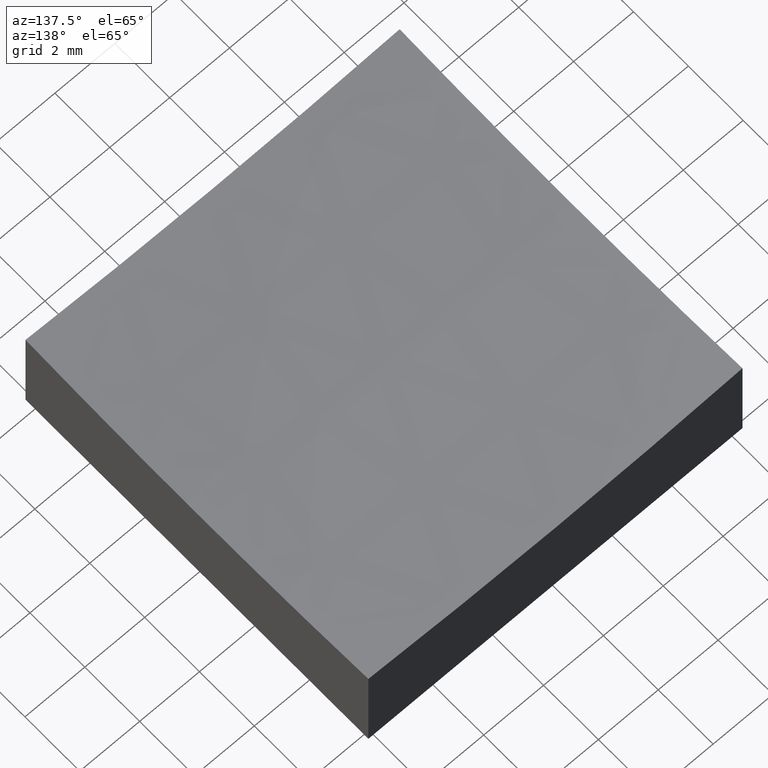
[diagram: clean part render]
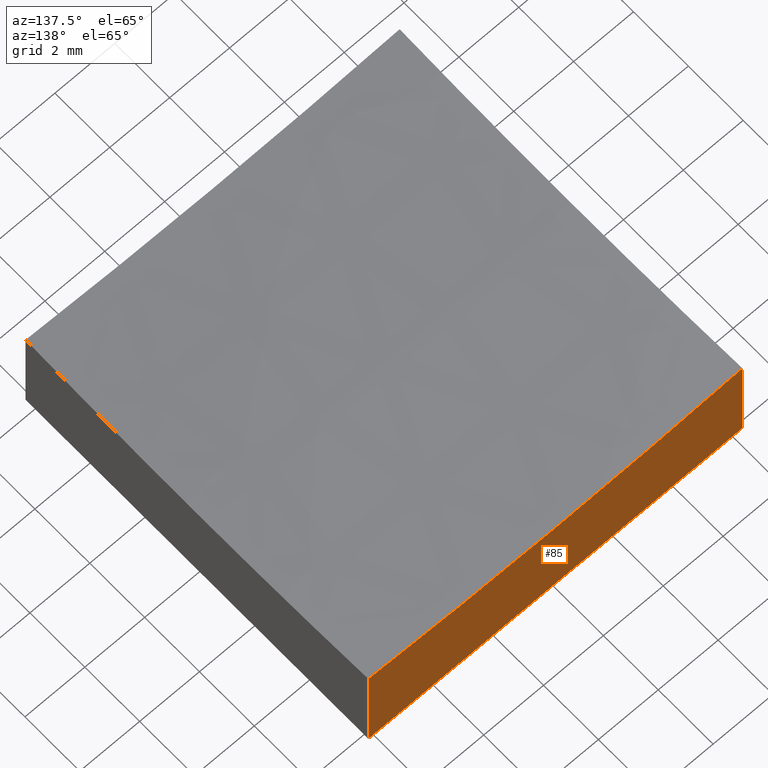
[diagram: same view with one face highlighted and labeled with its STEP entity id]
A machine part, auxiliary view. The second image highlights one B-rep face of the part: STEP entity #85.
In plain terms, the highlighted planar face has unit normal (0, 1, 0).
Its self-contained STEP definition (entity closure, byte-faithful):
#22 = LINE ( 'NONE', #120, #118 ) ;
#28 = ORIENTED_EDGE ( 'NONE', *, *, #129, .T. ) ;
#32 = DIRECTION ( 'NONE',  ( 1.000000000000000000, 0.0000000000000000000, 0.0000000000000000000 ) ) ;
#38 = AXIS2_PLACEMENT_3D ( 'NONE', #185, #133, #151 ) ;
#64 = EDGE_LOOP ( 'NONE', ( #197, #28, #221, #217 ) ) ;
#67 = VERTEX_POINT ( 'NONE', #188 ) ;
#72 = DIRECTION ( 'NONE',  ( 0.0000000000000000000, -0.0000000000000000000, 1.000000000000000000 ) ) ;
#85 = ADVANCED_FACE ( 'NONE', ( #145 ), #147, .T. ) ;
#90 = CARTESIAN_POINT ( 'NONE',  ( 6.250000000000000000, 6.250000000000000888, 10.00000000000000000 ) ) ;
#92 = LINE ( 'NONE', #90, #248 ) ;
#94 = EDGE_CURVE ( 'NONE', #67, #139, #99, .T. ) ;
#99 = LINE ( 'NONE', #182, #121 ) ;
#109 = VERTEX_POINT ( 'NONE', #117 ) ;
#117 = CARTESIAN_POINT ( 'NONE',  ( -6.250000000000000000, 6.250000000000000888, 3.489780531053754409 ) ) ;
#118 = VECTOR ( 'NONE', #122, 1000.000000000000000 ) ;
#120 = CARTESIAN_POINT ( 'NONE',  ( -6.250000000000000000, 6.250000000000000888, 10.00000000000000000 ) ) ;
#121 = VECTOR ( 'NONE', #32, 1000.000000000000000 ) ;
#122 = DIRECTION ( 'NONE',  ( -0.0000000000000000000, -0.0000000000000000000, -1.000000000000000000 ) ) ;
#125 = CARTESIAN_POINT ( 'NONE',  ( 6.250000000000000000, 6.250000000000000888, 3.489780531053754409 ) ) ;
#129 = EDGE_CURVE ( 'NONE', #234, #139, #92, .T. ) ;
#131 = DIRECTION ( 'NONE',  ( 0.0000000000000000000, 1.000000000000000000, 0.0000000000000000000 ) ) ;
#133 = DIRECTION ( 'NONE',  ( 0.0000000000000000000, 1.000000000000000000, 0.0000000000000000000 ) ) ;
#139 = VERTEX_POINT ( 'NONE', #250 ) ;
#145 = FACE_OUTER_BOUND ( 'NONE', #64, .T. ) ;
#147 = PLANE ( 'NONE',  #237 ) ;
#151 = DIRECTION ( 'NONE',  ( 0.0000000000000000000, 0.0000000000000000000, 1.000000000000000000 ) ) ;
#170 = EDGE_CURVE ( 'NONE', #234, #109, #187, .T. ) ;
#171 = CARTESIAN_POINT ( 'NONE',  ( -6.250000000000000000, 6.250000000000000888, 10.00000000000000000 ) ) ;
#182 = CARTESIAN_POINT ( 'NONE',  ( -6.250000000000000000, 6.250000000000000888, 0.0000000000000000000 ) ) ;
#185 = CARTESIAN_POINT ( 'NONE',  ( 1.016456843292302992E-14, 6.250000000000000888, 83.00000000000000000 ) ) ;
#187 = CIRCLE ( 'NONE', #38, 79.75548570474634857 ) ;
#188 = CARTESIAN_POINT ( 'NONE',  ( -6.250000000000000000, 6.250000000000000888, 0.0000000000000000000 ) ) ;
#197 = ORIENTED_EDGE ( 'NONE', *, *, #170, .F. ) ;
#217 = ORIENTED_EDGE ( 'NONE', *, *, #251, .F. ) ;
#221 = ORIENTED_EDGE ( 'NONE', *, *, #94, .F. ) ;
#234 = VERTEX_POINT ( 'NONE', #125 ) ;
#237 = AXIS2_PLACEMENT_3D ( 'NONE', #171, #131, #72 ) ;
#243 = DIRECTION ( 'NONE',  ( -0.0000000000000000000, -0.0000000000000000000, -1.000000000000000000 ) ) ;
#248 = VECTOR ( 'NONE', #243, 1000.000000000000000 ) ;
#250 = CARTESIAN_POINT ( 'NONE',  ( 6.250000000000000000, 6.250000000000000888, 0.0000000000000000000 ) ) ;
#251 = EDGE_CURVE ( 'NONE', #109, #67, #22, .T. ) ;